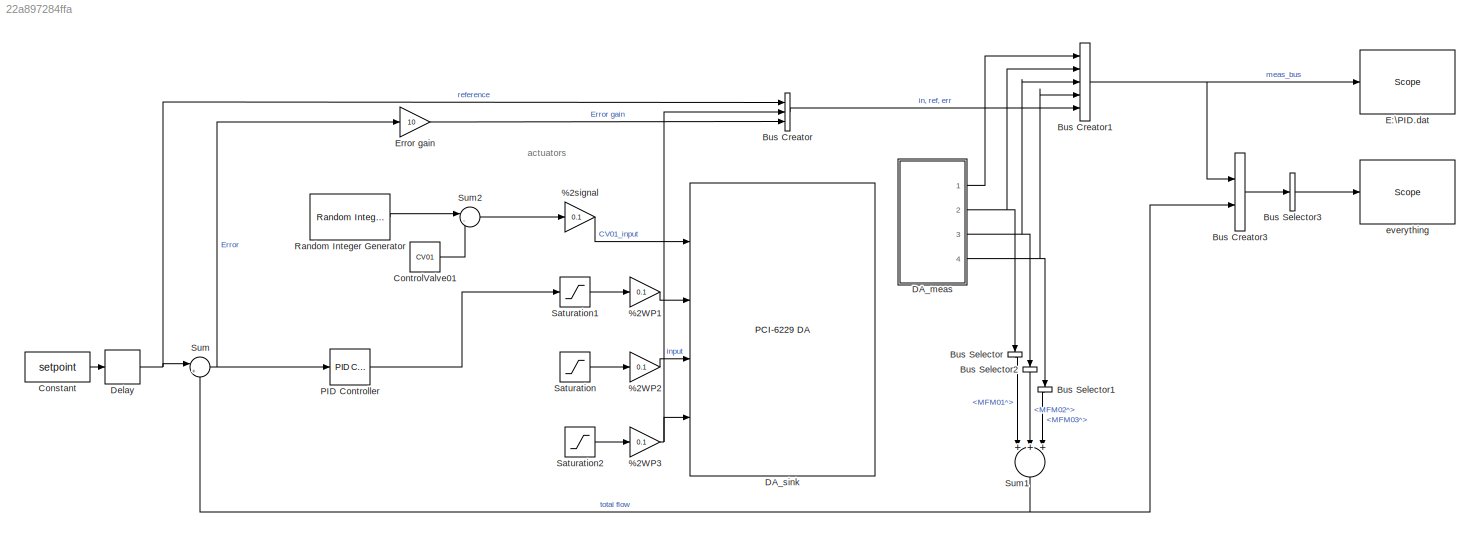
MODEL slx_22a897284ffa
KIND model
CONFIG AbsTol = auto
CONFIG EnableMultiTasking = on
CONFIG FixedStep = auto
CONFIG MaxStep = 0.1
CONFIG MinStep = auto
CONFIG RelTol = 1e-3
CONFIG SampleTimeConstraint = Unconstrained
CONFIG Solver = FixedStepAuto
CONFIG SolverName = FixedStepAuto
CONFIG StartTime = 0.0
CONFIG StopTime = simstop
BLOCK [Gain] %2WP1
  Gain = 0.1
  OutDataTypeStr = Inherit: Inherit via internal rule
  ParamDataTypeStr = Inherit: Inherit via internal rule
  SaturateOnIntegerOverflow = off
BLOCK [Gain] %2WP2
  Gain = 0.1
  OutDataTypeStr = Inherit: Inherit via internal rule
  ParamDataTypeStr = Inherit: Inherit via internal rule
  SaturateOnIntegerOverflow = off
BLOCK [Gain] %2WP3
  Gain = 0.1
  OutDataTypeStr = Inherit: Inherit via internal rule
  ParamDataTypeStr = Inherit: Inherit via internal rule
  SaturateOnIntegerOverflow = off
BLOCK [Gain] %2signal
  Gain = 0.1
  OutDataTypeStr = Inherit: Inherit via internal rule
  ParamDataTypeStr = Inherit: Inherit via internal rule
  SaturateOnIntegerOverflow = off
BLOCK [BusCreator] Bus Creator
  DisplayOption = bar
  InheritFromInputs = on
  Inputs = 3
  Ports = [3, 1]
BLOCK [BusCreator] Bus Creator1
  DisplayOption = bar
  InheritFromInputs = on
  Inputs = 5
  Ports = [5, 1]
BLOCK [BusCreator] Bus Creator3
  DisplayOption = bar
  InheritFromInputs = on
  Inputs = 2
  Ports = [2, 1]
BLOCK [BusSelector] Bus Selector
  OutputSignals = MFM01^
  Ports = [1, 1]
BLOCK [BusSelector] Bus Selector1
  OutputSignals = MFM03^
  Ports = [1, 1]
BLOCK [BusSelector] Bus Selector2
  OutputSignals = MFM02^
  Ports = [1, 1]
BLOCK [BusSelector] Bus Selector3
  OutputAsBus = on
  OutputSignals = meas_bus.Pump1.LMGP1,meas_bus.Pump2.LMGP2,meas_bus.Pump3.LMGP3
  Ports = [1, 1]
BLOCK [Constant] Constant
  Value = setpoint
BLOCK [Constant] ControlValve01
  Value = CV01
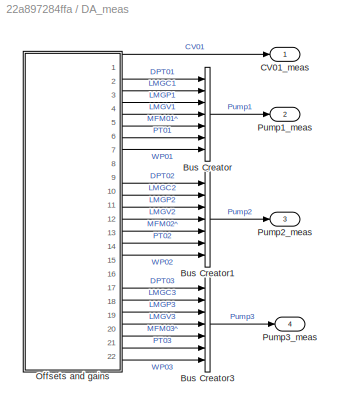
BLOCK [SubSystem] DA_meas
  Ports = [0, 4]
  RequestExecContextInheritance = off
  Variant = off
BLOCK [BusCreator] DA_meas/Bus Creator
  DisplayOption = bar
  InheritFromInputs = on
  Inputs = 7
  Ports = [7, 1]
BLOCK [BusCreator] DA_meas/Bus Creator1
  DisplayOption = bar
  InheritFromInputs = on
  Inputs = 7
  Ports = [7, 1]
BLOCK [BusCreator] DA_meas/Bus Creator3
  DisplayOption = bar
  InheritFromInputs = on
  Inputs = 7
  Ports = [7, 1]
BLOCK [Outport] DA_meas/CV01_meas
  IconDisplay = Port number
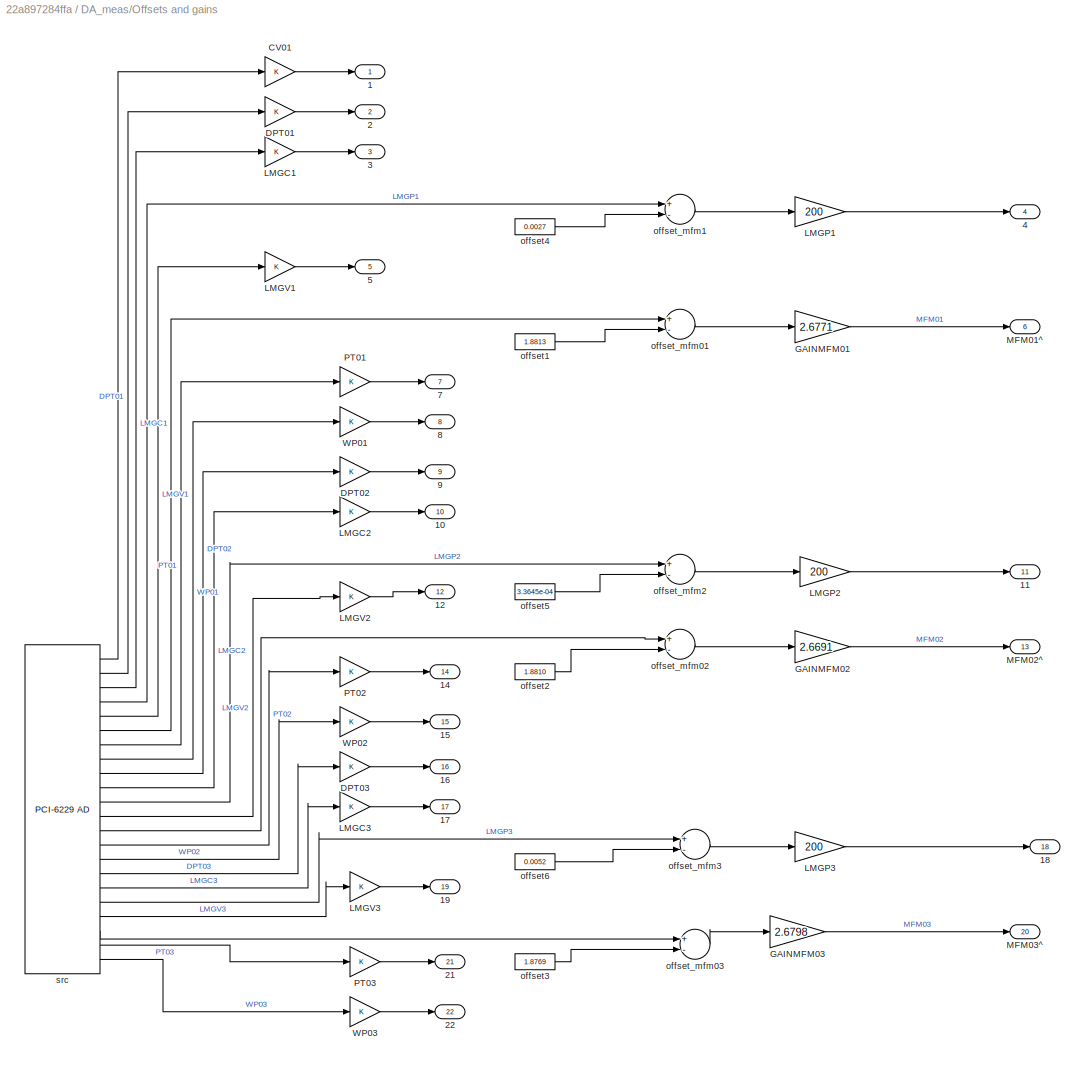
BLOCK [SubSystem] DA_meas/Offsets and gains
  Ports = [0, 22]
  RequestExecContextInheritance = off
  Variant = off
BLOCK [Outport] DA_meas/Offsets and gains/1
  IconDisplay = Port number
BLOCK [Outport] DA_meas/Offsets and gains/10
  IconDisplay = Port number
  Port = 10
BLOCK [Outport] DA_meas/Offsets and gains/11
  IconDisplay = Port number
  Port = 11
BLOCK [Outport] DA_meas/Offsets and gains/12
  IconDisplay = Port number
  Port = 12
BLOCK [Outport] DA_meas/Offsets and gains/14
  IconDisplay = Port number
  Port = 14
BLOCK [Outport] DA_meas/Offsets and gains/15
  IconDisplay = Port number
  Port = 15
BLOCK [Outport] DA_meas/Offsets and gains/16
  IconDisplay = Port number
  Port = 16
BLOCK [Outport] DA_meas/Offsets and gains/17
  IconDisplay = Port number
  Port = 17
BLOCK [Outport] DA_meas/Offsets and gains/18
  IconDisplay = Port number
  Port = 18
BLOCK [Outport] DA_meas/Offsets and gains/19
  IconDisplay = Port number
  Port = 19
BLOCK [Outport] DA_meas/Offsets and gains/2
  IconDisplay = Port number
  Port = 2
BLOCK [Outport] DA_meas/Offsets and gains/21
  IconDisplay = Port number
  Port = 21
BLOCK [Outport] DA_meas/Offsets and gains/22
  IconDisplay = Port number
  Port = 22
BLOCK [Outport] DA_meas/Offsets and gains/3
  IconDisplay = Port number
  Port = 3
BLOCK [Outport] DA_meas/Offsets and gains/4
  IconDisplay = Port number
  Port = 4
BLOCK [Outport] DA_meas/Offsets and gains/5
  IconDisplay = Port number
  Port = 5
BLOCK [Outport] DA_meas/Offsets and gains/7
  IconDisplay = Port number
  Port = 7
BLOCK [Outport] DA_meas/Offsets and gains/8
  IconDisplay = Port number
  Port = 8
BLOCK [Outport] DA_meas/Offsets and gains/9
  IconDisplay = Port number
  Port = 9
BLOCK [Gain] DA_meas/Offsets and gains/CV01
  OutDataTypeStr = Inherit: Inherit via internal rule
  ParamDataTypeStr = Inherit: Inherit via internal rule
  SaturateOnIntegerOverflow = off
BLOCK [Gain] DA_meas/Offsets and gains/DPT01
  OutDataTypeStr = Inherit: Inherit via internal rule
  ParamDataTypeStr = Inherit: Inherit via internal rule
  SaturateOnIntegerOverflow = off
BLOCK [Gain] DA_meas/Offsets and gains/DPT02
  OutDataTypeStr = Inherit: Inherit via internal rule
  ParamDataTypeStr = Inherit: Inherit via internal rule
  SaturateOnIntegerOverflow = off
BLOCK [Gain] DA_meas/Offsets and gains/DPT03
  OutDataTypeStr = Inherit: Inherit via internal rule
  ParamDataTypeStr = Inherit: Inherit via internal rule
  SaturateOnIntegerOverflow = off
BLOCK [Gain] DA_meas/Offsets and gains/GAINMFM01
  Gain = 2.6771
  OutDataTypeStr = Inherit: Inherit via internal rule
  ParamDataTypeStr = Inherit: Inherit via internal rule
  SaturateOnIntegerOverflow = off
BLOCK [Gain] DA_meas/Offsets and gains/GAINMFM02
  Gain = 2.6691
  OutDataTypeStr = Inherit: Inherit via internal rule
  ParamDataTypeStr = Inherit: Inherit via internal rule
  SaturateOnIntegerOverflow = off
BLOCK [Gain] DA_meas/Offsets and gains/GAINMFM03
  Gain = 2.6798
  OutDataTypeStr = Inherit: Inherit via internal rule
  ParamDataTypeStr = Inherit: Inherit via internal rule
  SaturateOnIntegerOverflow = off
BLOCK [Gain] DA_meas/Offsets and gains/LMGC1
  OutDataTypeStr = Inherit: Inherit via internal rule
  ParamDataTypeStr = Inherit: Inherit via internal rule
  SaturateOnIntegerOverflow = off
BLOCK [Gain] DA_meas/Offsets and gains/LMGC2
  OutDataTypeStr = Inherit: Inherit via internal rule
  ParamDataTypeStr = Inherit: Inherit via internal rule
  SaturateOnIntegerOverflow = off
BLOCK [Gain] DA_meas/Offsets and gains/LMGC3
  OutDataTypeStr = Inherit: Inherit via internal rule
  ParamDataTypeStr = Inherit: Inherit via internal rule
  SaturateOnIntegerOverflow = off
BLOCK [Gain] DA_meas/Offsets and gains/LMGP1
  Gain = 200
  OutDataTypeStr = Inherit: Inherit via internal rule
  ParamDataTypeStr = Inherit: Inherit via internal rule
  SaturateOnIntegerOverflow = off
BLOCK [Gain] DA_meas/Offsets and gains/LMGP2
  Gain = 200
  OutDataTypeStr = Inherit: Inherit via internal rule
  ParamDataTypeStr = Inherit: Inherit via internal rule
  SaturateOnIntegerOverflow = off
BLOCK [Gain] DA_meas/Offsets and gains/LMGP3
  Gain = 200
  OutDataTypeStr = Inherit: Inherit via internal rule
  ParamDataTypeStr = Inherit: Inherit via internal rule
  SaturateOnIntegerOverflow = off
BLOCK [Gain] DA_meas/Offsets and gains/LMGV1
  OutDataTypeStr = Inherit: Inherit via internal rule
  ParamDataTypeStr = Inherit: Inherit via internal rule
  SaturateOnIntegerOverflow = off
BLOCK [Gain] DA_meas/Offsets and gains/LMGV2
  OutDataTypeStr = Inherit: Inherit via internal rule
  ParamDataTypeStr = Inherit: Inherit via internal rule
  SaturateOnIntegerOverflow = off
BLOCK [Gain] DA_meas/Offsets and gains/LMGV3
  OutDataTypeStr = Inherit: Inherit via internal rule
  ParamDataTypeStr = Inherit: Inherit via internal rule
  SaturateOnIntegerOverflow = off
BLOCK [Outport] DA_meas/Offsets and gains/MFM01^
  IconDisplay = Port number
  Port = 6
BLOCK [Outport] DA_meas/Offsets and gains/MFM02^
  IconDisplay = Port number
  Port = 13
BLOCK [Outport] DA_meas/Offsets and gains/MFM03^
  IconDisplay = Port number
  Port = 20
BLOCK [Gain] DA_meas/Offsets and gains/PT01
  OutDataTypeStr = Inherit: Inherit via internal rule
  ParamDataTypeStr = Inherit: Inherit via internal rule
  SaturateOnIntegerOverflow = off
BLOCK [Gain] DA_meas/Offsets and gains/PT02
  OutDataTypeStr = Inherit: Inherit via internal rule
  ParamDataTypeStr = Inherit: Inherit via internal rule
  SaturateOnIntegerOverflow = off
BLOCK [Gain] DA_meas/Offsets and gains/PT03
  OutDataTypeStr = Inherit: Inherit via internal rule
  ParamDataTypeStr = Inherit: Inherit via internal rule
  SaturateOnIntegerOverflow = off
BLOCK [Gain] DA_meas/Offsets and gains/WP01
  OutDataTypeStr = Inherit: Inherit via internal rule
  ParamDataTypeStr = Inherit: Inherit via internal rule
  SaturateOnIntegerOverflow = off
BLOCK [Gain] DA_meas/Offsets and gains/WP02
  OutDataTypeStr = Inherit: Inherit via internal rule
  ParamDataTypeStr = Inherit: Inherit via internal rule
  SaturateOnIntegerOverflow = off
BLOCK [Gain] DA_meas/Offsets and gains/WP03
  OutDataTypeStr = Inherit: Inherit via internal rule
  ParamDataTypeStr = Inherit: Inherit via internal rule
  SaturateOnIntegerOverflow = off
BLOCK [Constant] DA_meas/Offsets and gains/offset1
  Value = 1.8813
BLOCK [Constant] DA_meas/Offsets and gains/offset2
  Value = 1.8810
BLOCK [Constant] DA_meas/Offsets and gains/offset3
  Value = 1.8769
BLOCK [Constant] DA_meas/Offsets and gains/offset4
  Value = 0.0027
BLOCK [Constant] DA_meas/Offsets and gains/offset5
  Value = 3.3645e-04
BLOCK [Constant] DA_meas/Offsets and gains/offset6
  Value = 0.0052
BLOCK [Sum] DA_meas/Offsets and gains/offset_mfm01
  InputSameDT = off
  Inputs = +-
  OutDataTypeStr = Inherit: Inherit via internal rule
  Ports = [2, 1]
  SaturateOnIntegerOverflow = off
BLOCK [Sum] DA_meas/Offsets and gains/offset_mfm02
  InputSameDT = off
  Inputs = +-
  OutDataTypeStr = Inherit: Inherit via internal rule
  Ports = [2, 1]
  SaturateOnIntegerOverflow = off
BLOCK [Sum] DA_meas/Offsets and gains/offset_mfm03
  InputSameDT = off
  Inputs = +-
  OutDataTypeStr = Inherit: Inherit via internal rule
  Ports = [2, 1]
  SaturateOnIntegerOverflow = off
BLOCK [Sum] DA_meas/Offsets and gains/offset_mfm1
  InputSameDT = off
  Inputs = +-
  OutDataTypeStr = Inherit: Inherit via internal rule
  Ports = [2, 1]
  SaturateOnIntegerOverflow = off
BLOCK [Sum] DA_meas/Offsets and gains/offset_mfm2
  InputSameDT = off
  Inputs = +-
  OutDataTypeStr = Inherit: Inherit via internal rule
  Ports = [2, 1]
  SaturateOnIntegerOverflow = off
BLOCK [Sum] DA_meas/Offsets and gains/offset_mfm3
  InputSameDT = off
  Inputs = +-
  OutDataTypeStr = Inherit: Inherit via internal rule
  Ports = [2, 1]
  SaturateOnIntegerOverflow = off
BLOCK [Reference] DA_meas/Offsets and gains/src  REF=xpcnilib/A//D/M Series/PCI-6229 AD
  Ports = [0, 22]
  SourceBlock = xpcnilib/A//D/M Series/PCI-6229 AD
  SourceType = adnipci6229
BLOCK [Outport] DA_meas/Pump1_meas
  IconDisplay = Port number
  Port = 2
BLOCK [Outport] DA_meas/Pump2_meas
  IconDisplay = Port number
  Port = 3
BLOCK [Outport] DA_meas/Pump3_meas
  IconDisplay = Port number
  Port = 4
BLOCK [Reference] DA_sink  REF=xpcnilib/D//A/M Series/PCI-6229 DA
  Ports = [4]
  SourceBlock = xpcnilib/D//A/M Series/PCI-6229 DA
  SourceType = danipci6229
BLOCK [Delay] Delay
  DelayLength = CV01t*100
  InputPortMap = u0
  Ports = [1, 1]
BLOCK [Reference] E:\PID.dat  REF=slrtlib/Displays and
Logging/Scope 
  Ports = [1]
  SourceBlock = slrtlib/Displays and\nLogging/Scope
  SourceType = xpcscopeblock
BLOCK [Gain] Error gain
  Gain = 10
  OutDataTypeStr = Inherit: Inherit via internal rule
  ParamDataTypeStr = Inherit: Inherit via internal rule
  SaturateOnIntegerOverflow = off
BLOCK [Reference] PID Controller  REF=simulink/Continuous/PID Controller
  Ports = [1, 1]
  SourceBlock = simulink/Continuous/PID Controller
  SourceType = PID 1dof
BLOCK [Reference] Random Integer Generator  REF=commrandsrc3/Random Integer
Generator
  Ports = [0, 1]
  SourceBlock = commrandsrc3/Random Integer\nGenerator
  SourceType = Random Integer Generator
BLOCK [Saturate] Saturation
  InputPortMap = u0
  LowerLimit = 0
  Ports = [1, 1]
  UpperLimit = 80
BLOCK [Saturate] Saturation1
  InputPortMap = u0
  LowerLimit = 0
  Ports = [1, 1]
  UpperLimit = 80
BLOCK [Saturate] Saturation2
  InputPortMap = u0
  LowerLimit = 0
  Ports = [1, 1]
  UpperLimit = 80
BLOCK [Sum] Sum
  IconShape = round
  InputSameDT = off
  Inputs = |+-
  OutDataTypeStr = Inherit: Inherit via internal rule
  Ports = [2, 1]
  SaturateOnIntegerOverflow = off
BLOCK [Sum] Sum1
  InputSameDT = off
  Inputs = +++
  OutDataTypeStr = Inherit: Inherit via internal rule
  Ports = [3, 1]
  SaturateOnIntegerOverflow = off
BLOCK [Sum] Sum2
  IconShape = round
  InputSameDT = off
  Inputs = |-+
  OutDataTypeStr = Inherit: Inherit via internal rule
  Ports = [2, 1]
  SaturateOnIntegerOverflow = off
BLOCK [Reference] everything  REF=slrtlib/Displays and
Logging/Scope 
  Ports = [1]
  SourceBlock = slrtlib/Displays and\nLogging/Scope
  SourceType = xpcscopeblock
ANNOTATION (root): actuators
LINE %2WP1:1 -> DA_sink:2
LINE %2WP2:1 -> DA_sink:3
NET %2WP3:1 -> Bus Creator:2, DA_sink:4
LINE %2signal:1 -> DA_sink:1
NET Bus Creator1:1 -> Bus Creator3:1, E:\PID.dat:1
LINE Bus Creator3:1 -> Bus Selector3:1
LINE Bus Creator:1 -> Bus Creator1:5
LINE Bus Selector1:1 -> Sum1:3
LINE Bus Selector2:1 -> Sum1:2
LINE Bus Selector3:1 -> everything:1
LINE Bus Selector:1 -> Sum1:1
LINE Constant:1 -> Delay:1
LINE ControlValve01:1 -> Sum2:2
LINE DA_meas/Bus Creator1:1 -> DA_meas/Pump2_meas:1
LINE DA_meas/Bus Creator3:1 -> DA_meas/Pump3_meas:1
LINE DA_meas/Bus Creator:1 -> DA_meas/Pump1_meas:1
LINE DA_meas/Offsets and gains/CV01:1 -> DA_meas/Offsets and gains/1:1
LINE DA_meas/Offsets and gains/DPT01:1 -> DA_meas/Offsets and gains/2:1
LINE DA_meas/Offsets and gains/DPT02:1 -> DA_meas/Offsets and gains/9:1
LINE DA_meas/Offsets and gains/DPT03:1 -> DA_meas/Offsets and gains/16:1
LINE DA_meas/Offsets and gains/GAINMFM01:1 -> DA_meas/Offsets and gains/MFM01^:1
LINE DA_meas/Offsets and gains/GAINMFM02:1 -> DA_meas/Offsets and gains/MFM02^:1
LINE DA_meas/Offsets and gains/GAINMFM03:1 -> DA_meas/Offsets and gains/MFM03^:1
LINE DA_meas/Offsets and gains/LMGC1:1 -> DA_meas/Offsets and gains/3:1
LINE DA_meas/Offsets and gains/LMGC2:1 -> DA_meas/Offsets and gains/10:1
LINE DA_meas/Offsets and gains/LMGC3:1 -> DA_meas/Offsets and gains/17:1
LINE DA_meas/Offsets and gains/LMGP1:1 -> DA_meas/Offsets and gains/4:1
LINE DA_meas/Offsets and gains/LMGP2:1 -> DA_meas/Offsets and gains/11:1
LINE DA_meas/Offsets and gains/LMGP3:1 -> DA_meas/Offsets and gains/18:1
LINE DA_meas/Offsets and gains/LMGV1:1 -> DA_meas/Offsets and gains/5:1
LINE DA_meas/Offsets and gains/LMGV2:1 -> DA_meas/Offsets and gains/12:1
LINE DA_meas/Offsets and gains/LMGV3:1 -> DA_meas/Offsets and gains/19:1
LINE DA_meas/Offsets and gains/PT01:1 -> DA_meas/Offsets and gains/7:1
LINE DA_meas/Offsets and gains/PT02:1 -> DA_meas/Offsets and gains/14:1
LINE DA_meas/Offsets and gains/PT03:1 -> DA_meas/Offsets and gains/21:1
LINE DA_meas/Offsets and gains/WP01:1 -> DA_meas/Offsets and gains/8:1
LINE DA_meas/Offsets and gains/WP02:1 -> DA_meas/Offsets and gains/15:1
LINE DA_meas/Offsets and gains/WP03:1 -> DA_meas/Offsets and gains/22:1
LINE DA_meas/Offsets and gains/offset1:1 -> DA_meas/Offsets and gains/offset_mfm01:2
LINE DA_meas/Offsets and gains/offset2:1 -> DA_meas/Offsets and gains/offset_mfm02:2
LINE DA_meas/Offsets and gains/offset3:1 -> DA_meas/Offsets and gains/offset_mfm03:2
LINE DA_meas/Offsets and gains/offset4:1 -> DA_meas/Offsets and gains/offset_mfm1:2
LINE DA_meas/Offsets and gains/offset5:1 -> DA_meas/Offsets and gains/offset_mfm2:2
LINE DA_meas/Offsets and gains/offset6:1 -> DA_meas/Offsets and gains/offset_mfm3:2
LINE DA_meas/Offsets and gains/offset_mfm01:1 -> DA_meas/Offsets and gains/GAINMFM01:1
LINE DA_meas/Offsets and gains/offset_mfm02:1 -> DA_meas/Offsets and gains/GAINMFM02:1
LINE DA_meas/Offsets and gains/offset_mfm03:1 -> DA_meas/Offsets and gains/GAINMFM03:1
LINE DA_meas/Offsets and gains/offset_mfm1:1 -> DA_meas/Offsets and gains/LMGP1:1
LINE DA_meas/Offsets and gains/offset_mfm2:1 -> DA_meas/Offsets and gains/LMGP2:1
LINE DA_meas/Offsets and gains/offset_mfm3:1 -> DA_meas/Offsets and gains/LMGP3:1
LINE DA_meas/Offsets and gains/src:1 -> DA_meas/Offsets and gains/CV01:1
LINE DA_meas/Offsets and gains/src:10 -> DA_meas/Offsets and gains/LMGC2:1
LINE DA_meas/Offsets and gains/src:11 -> DA_meas/Offsets and gains/offset_mfm2:1
LINE DA_meas/Offsets and gains/src:12 -> DA_meas/Offsets and gains/LMGV2:1
LINE DA_meas/Offsets and gains/src:13 -> DA_meas/Offsets and gains/offset_mfm02:1
LINE DA_meas/Offsets and gains/src:14 -> DA_meas/Offsets and gains/PT02:1
LINE DA_meas/Offsets and gains/src:15 -> DA_meas/Offsets and gains/WP02:1
LINE DA_meas/Offsets and gains/src:16 -> DA_meas/Offsets and gains/DPT03:1
LINE DA_meas/Offsets and gains/src:17 -> DA_meas/Offsets and gains/LMGC3:1
LINE DA_meas/Offsets and gains/src:18 -> DA_meas/Offsets and gains/offset_mfm3:1
LINE DA_meas/Offsets and gains/src:19 -> DA_meas/Offsets and gains/LMGV3:1
LINE DA_meas/Offsets and gains/src:2 -> DA_meas/Offsets and gains/DPT01:1
LINE DA_meas/Offsets and gains/src:20 -> DA_meas/Offsets and gains/offset_mfm03:1
LINE DA_meas/Offsets and gains/src:21 -> DA_meas/Offsets and gains/PT03:1
LINE DA_meas/Offsets and gains/src:22 -> DA_meas/Offsets and gains/WP03:1
LINE DA_meas/Offsets and gains/src:3 -> DA_meas/Offsets and gains/LMGC1:1
LINE DA_meas/Offsets and gains/src:4 -> DA_meas/Offsets and gains/offset_mfm1:1
LINE DA_meas/Offsets and gains/src:5 -> DA_meas/Offsets and gains/LMGV1:1
LINE DA_meas/Offsets and gains/src:6 -> DA_meas/Offsets and gains/offset_mfm01:1
LINE DA_meas/Offsets and gains/src:7 -> DA_meas/Offsets and gains/PT01:1
LINE DA_meas/Offsets and gains/src:8 -> DA_meas/Offsets and gains/WP01:1
LINE DA_meas/Offsets and gains/src:9 -> DA_meas/Offsets and gains/DPT02:1
LINE DA_meas/Offsets and gains:1 -> DA_meas/CV01_meas:1
LINE DA_meas/Offsets and gains:10 -> DA_meas/Bus Creator1:2
LINE DA_meas/Offsets and gains:11 -> DA_meas/Bus Creator1:3
LINE DA_meas/Offsets and gains:12 -> DA_meas/Bus Creator1:4
LINE DA_meas/Offsets and gains:13 -> DA_meas/Bus Creator1:5
LINE DA_meas/Offsets and gains:14 -> DA_meas/Bus Creator1:6
LINE DA_meas/Offsets and gains:15 -> DA_meas/Bus Creator1:7
LINE DA_meas/Offsets and gains:16 -> DA_meas/Bus Creator3:1
LINE DA_meas/Offsets and gains:17 -> DA_meas/Bus Creator3:2
LINE DA_meas/Offsets and gains:18 -> DA_meas/Bus Creator3:3
LINE DA_meas/Offsets and gains:19 -> DA_meas/Bus Creator3:4
LINE DA_meas/Offsets and gains:2 -> DA_meas/Bus Creator:1
LINE DA_meas/Offsets and gains:20 -> DA_meas/Bus Creator3:5
LINE DA_meas/Offsets and gains:21 -> DA_meas/Bus Creator3:6
LINE DA_meas/Offsets and gains:22 -> DA_meas/Bus Creator3:7
LINE DA_meas/Offsets and gains:3 -> DA_meas/Bus Creator:2
LINE DA_meas/Offsets and gains:4 -> DA_meas/Bus Creator:3
LINE DA_meas/Offsets and gains:5 -> DA_meas/Bus Creator:4
LINE DA_meas/Offsets and gains:6 -> DA_meas/Bus Creator:5
LINE DA_meas/Offsets and gains:7 -> DA_meas/Bus Creator:6
LINE DA_meas/Offsets and gains:8 -> DA_meas/Bus Creator:7
LINE DA_meas/Offsets and gains:9 -> DA_meas/Bus Creator1:1
LINE DA_meas:1 -> Bus Creator1:1
NET DA_meas:2 -> Bus Creator1:2, Bus Selector:1
NET DA_meas:3 -> Bus Creator1:3, Bus Selector2:1
NET DA_meas:4 -> Bus Creator1:4, Bus Selector1:1
NET Delay:1 -> Bus Creator:1, Sum:1
LINE Error gain:1 -> Bus Creator:3
LINE PID Controller:1 -> Saturation1:1
LINE Random Integer Generator:1 -> Sum2:1
LINE Saturation1:1 -> %2WP1:1
LINE Saturation2:1 -> %2WP3:1
LINE Saturation:1 -> %2WP2:1
NET Sum1:1 -> Bus Creator3:2, Sum:2
LINE Sum2:1 -> %2signal:1
NET Sum:1 -> Error gain:1, PID Controller:1
note: NET lines group one-source signal fan-out (src -> all destinations, sorted); 1:1 wires keep LINE
